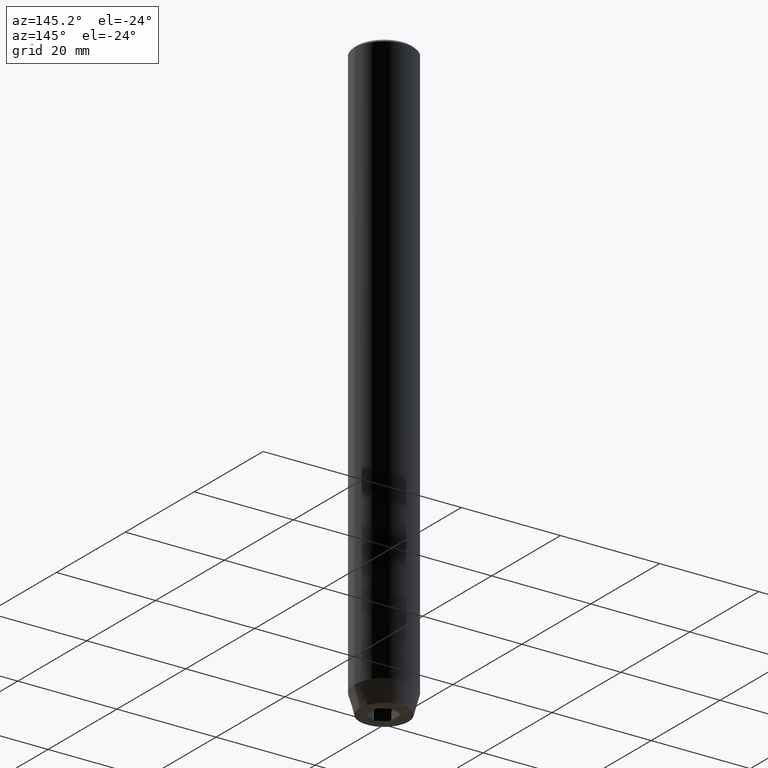
[diagram: clean part render]
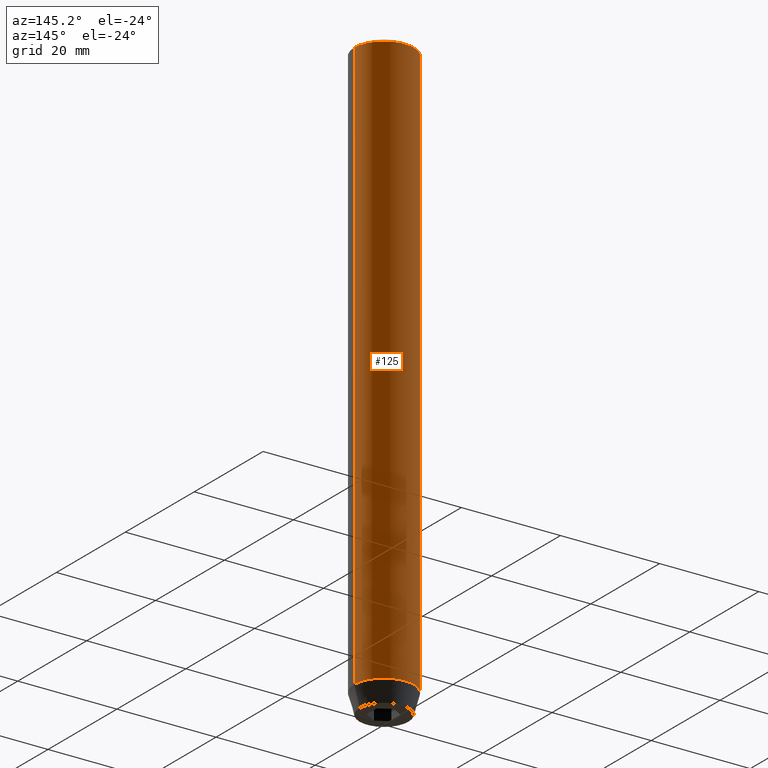
[diagram: same view with one face highlighted and labeled with its STEP entity id]
A machine part, auxiliary view. The second image highlights one B-rep face of the part: STEP entity #125.
In plain terms, the highlighted cylindrical surface (edge-blend (fillet) strip) has radius 6 mm, axis along (-0, -0, 1).
Its self-contained STEP definition (entity closure, byte-faithful):
#22 = CARTESIAN_POINT ( 'NONE',  ( 6.000000000000000000, 0.000000000000000000, -115.9999999999999858 ) ) ;
#26 = ORIENTED_EDGE ( 'NONE', *, *, #339, .T. ) ;
#59 = EDGE_LOOP ( 'NONE', ( #26, #611, #270, #556 ) ) ;
#64 = DIRECTION ( 'NONE',  ( -0.000000000000000000, -0.000000000000000000, 1.000000000000000000 ) ) ;
#66 = DIRECTION ( 'NONE',  ( 1.000000000000000000, 0.000000000000000000, 0.000000000000000000 ) ) ;
#80 = CARTESIAN_POINT ( 'NONE',  ( 0.000000000000000000, 0.000000000000000000, 0.000000000000000000 ) ) ;
#82 = CYLINDRICAL_SURFACE ( 'NONE', #398, 6.000000000000000000 ) ;
#86 = VECTOR ( 'NONE', #466, 1000.000000000000000 ) ;
#99 = VERTEX_POINT ( 'NONE', #22 ) ;
#125 = ADVANCED_FACE ( 'NONE', ( #484 ), #82, .T. ) ;
#155 = VERTEX_POINT ( 'NONE', #329 ) ;
#186 = DIRECTION ( 'NONE',  ( -0.000000000000000000, -0.000000000000000000, 1.000000000000000000 ) ) ;
#196 = CARTESIAN_POINT ( 'NONE',  ( -6.000000000000000000, 7.347880794884119736E-16, -115.9999999999999858 ) ) ;
#200 = DIRECTION ( 'NONE',  ( 1.000000000000000000, 0.000000000000000000, 0.000000000000000000 ) ) ;
#224 = DIRECTION ( 'NONE',  ( -0.000000000000000000, -0.000000000000000000, 1.000000000000000000 ) ) ;
#270 = ORIENTED_EDGE ( 'NONE', *, *, #303, .T. ) ;
#276 = CARTESIAN_POINT ( 'NONE',  ( 6.000000000000000000, 0.000000000000000000, 0.000000000000000000 ) ) ;
#303 = EDGE_CURVE ( 'NONE', #155, #377, #306, .T. ) ;
#306 = CIRCLE ( 'NONE', #550, 6.000000000000000000 ) ;
#326 = LINE ( 'NONE', #517, #357 ) ;
#329 = CARTESIAN_POINT ( 'NONE',  ( -6.000000000000000000, 7.347880794884119736E-16, -0.4999999999999752975 ) ) ;
#339 = EDGE_CURVE ( 'NONE', #99, #341, #529, .T. ) ;
#341 = VERTEX_POINT ( 'NONE', #196 ) ;
#345 = DIRECTION ( 'NONE',  ( 0.000000000000000000, 0.000000000000000000, -1.000000000000000000 ) ) ;
#357 = VECTOR ( 'NONE', #224, 1000.000000000000000 ) ;
#377 = VERTEX_POINT ( 'NONE', #401 ) ;
#398 = AXIS2_PLACEMENT_3D ( 'NONE', #80, #186, #473 ) ;
#401 = CARTESIAN_POINT ( 'NONE',  ( 6.000000000000000000, 0.000000000000000000, -0.4999999999999752975 ) ) ;
#430 = LINE ( 'NONE', #276, #86 ) ;
#466 = DIRECTION ( 'NONE',  ( -0.000000000000000000, -0.000000000000000000, 1.000000000000000000 ) ) ;
#473 = DIRECTION ( 'NONE',  ( 1.000000000000000000, 0.000000000000000000, 0.000000000000000000 ) ) ;
#478 = AXIS2_PLACEMENT_3D ( 'NONE', #634, #64, #66 ) ;
#484 = FACE_OUTER_BOUND ( 'NONE', #59, .T. ) ;
#487 = EDGE_CURVE ( 'NONE', #341, #155, #326, .T. ) ;
#494 = EDGE_CURVE ( 'NONE', #99, #377, #430, .T. ) ;
#517 = CARTESIAN_POINT ( 'NONE',  ( -6.000000000000000000, 7.347880794884119736E-16, 0.000000000000000000 ) ) ;
#529 = CIRCLE ( 'NONE', #478, 6.000000000000000000 ) ;
#550 = AXIS2_PLACEMENT_3D ( 'NONE', #593, #345, #200 ) ;
#556 = ORIENTED_EDGE ( 'NONE', *, *, #494, .F. ) ;
#593 = CARTESIAN_POINT ( 'NONE',  ( 0.000000000000000000, 0.000000000000000000, -0.4999999999999752975 ) ) ;
#611 = ORIENTED_EDGE ( 'NONE', *, *, #487, .T. ) ;
#634 = CARTESIAN_POINT ( 'NONE',  ( 0.000000000000000000, 0.000000000000000000, -115.9999999999999858 ) ) ;